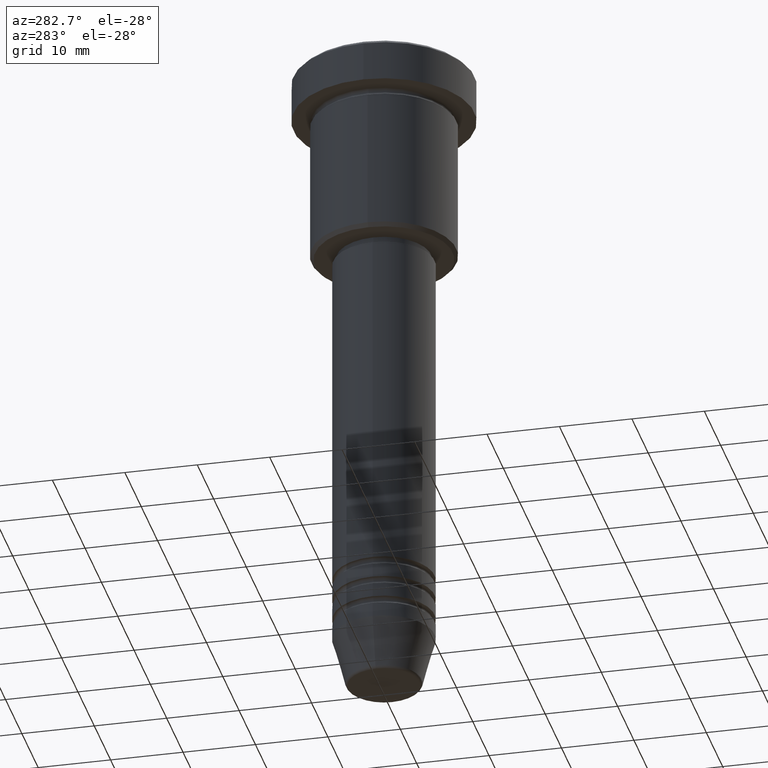
[diagram: clean part render]
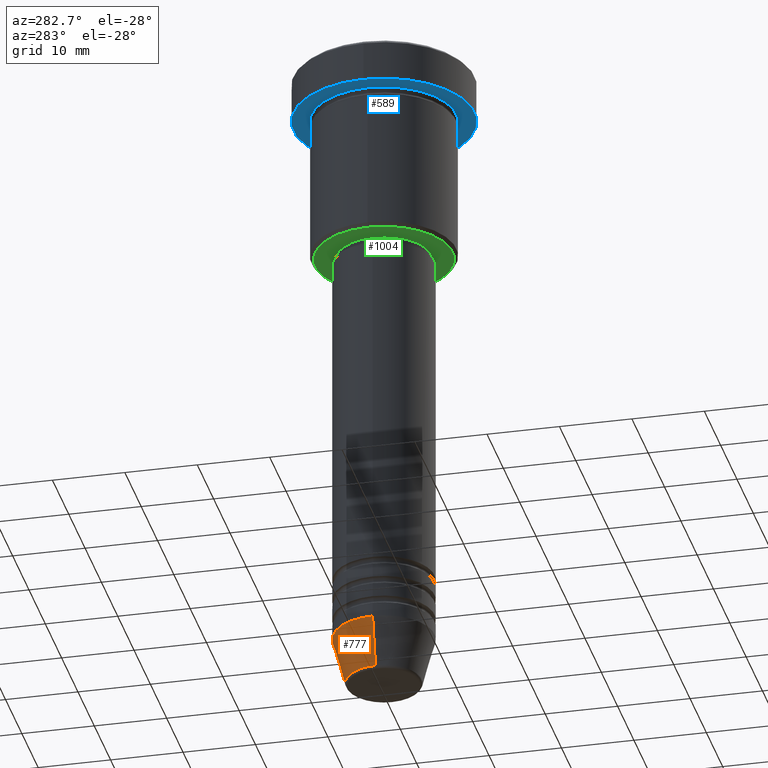
[diagram: same view with three faces highlighted in distinct colors, each labeled with its STEP entity id]
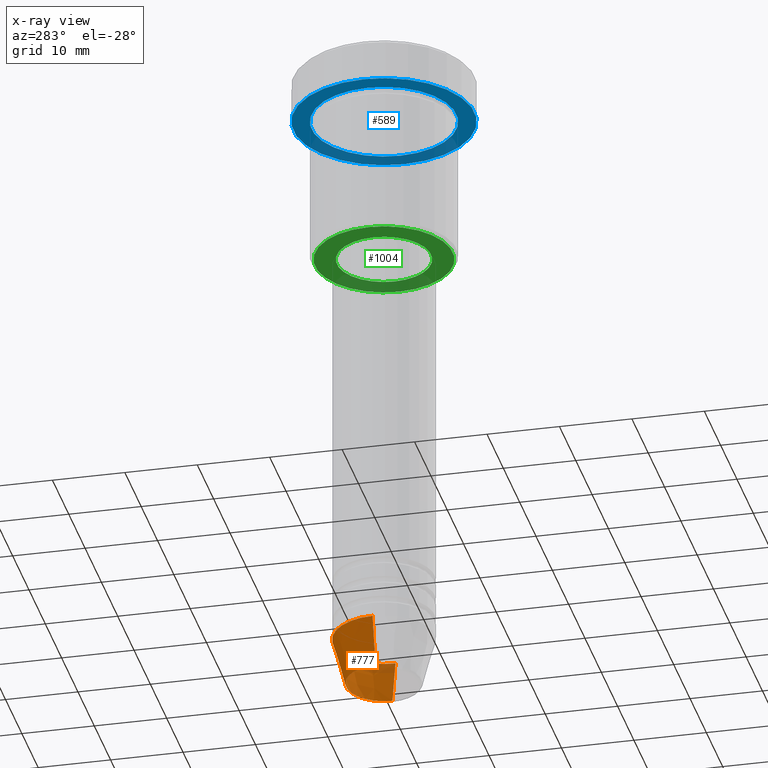
[diagram: x-ray of the same camera — body ghosted, the three highlighted faces saturated]
A machine part, auxiliary view with three faces highlighted in distinct colors.
The next image is the same camera in x-ray (body ghosted, the three faces saturated) — at least one of them is partly hidden behind the body in this view.
Their STEP definitions:

[orange] entity #777 — the highlighted conical surface has half-angle 15 deg.
#71 = CIRCLE ( 'NONE', #227, 5.223655072137187716 ) ;
#72 = VERTEX_POINT ( 'NONE', #1129 ) ;
#108 = EDGE_LOOP ( 'NONE', ( #890, #466, #371, #969 ) ) ;
#146 = DIRECTION ( 'NONE',  ( 0.2588190451025214056, 0.000000000000000000, 0.9659258262890680902 ) ) ;
#177 = EDGE_CURVE ( 'NONE', #952, #72, #809, .T. ) ;
#227 = AXIS2_PLACEMENT_3D ( 'NONE', #1058, #973, #420 ) ;
#228 = CARTESIAN_POINT ( 'NONE',  ( -5.223655072137187716, 7.484830028987059188E-16, -91.62940952255125637 ) ) ;
#237 = VERTEX_POINT ( 'NONE', #977 ) ;
#313 = CARTESIAN_POINT ( 'NONE',  ( 0.000000000000000000, 0.000000000000000000, -84.99999999999998579 ) ) ;
#342 = LINE ( 'NONE', #1136, #500 ) ;
#346 = EDGE_CURVE ( 'NONE', #72, #237, #654, .T. ) ;
#371 = ORIENTED_EDGE ( 'NONE', *, *, #346, .F. ) ;
#392 = DIRECTION ( 'NONE',  ( 1.000000000000000000, 0.000000000000000000, 0.000000000000000000 ) ) ;
#420 = DIRECTION ( 'NONE',  ( 1.000000000000000000, 0.000000000000000000, 0.000000000000000000 ) ) ;
#422 = AXIS2_PLACEMENT_3D ( 'NONE', #313, #590, #392 ) ;
#433 = EDGE_CURVE ( 'NONE', #952, #780, #71, .T. ) ;
#466 = ORIENTED_EDGE ( 'NONE', *, *, #1076, .T. ) ;
#500 = VECTOR ( 'NONE', #781, 1000.000000000000000 ) ;
#514 = VECTOR ( 'NONE', #146, 1000.000000000000000 ) ;
#543 = DIRECTION ( 'NONE',  ( 1.000000000000000000, 0.000000000000000000, 0.000000000000000000 ) ) ;
#556 = AXIS2_PLACEMENT_3D ( 'NONE', #733, #925, #543 ) ;
#582 = FACE_OUTER_BOUND ( 'NONE', #108, .T. ) ;
#590 = DIRECTION ( 'NONE',  ( -0.000000000000000000, -0.000000000000000000, 1.000000000000000000 ) ) ;
#654 = CIRCLE ( 'NONE', #556, 7.000000000000000000 ) ;
#733 = CARTESIAN_POINT ( 'NONE',  ( 0.000000000000000000, 0.000000000000000000, -84.99999999999998579 ) ) ;
#777 = ADVANCED_FACE ( 'NONE', ( #582 ), #940, .T. ) ;
#780 = VERTEX_POINT ( 'NONE', #228 ) ;
#781 = DIRECTION ( 'NONE',  ( -0.2588190451025214056, 3.169619151431772953E-17, 0.9659258262890680902 ) ) ;
#809 = LINE ( 'NONE', #1074, #514 ) ;
#890 = ORIENTED_EDGE ( 'NONE', *, *, #433, .T. ) ;
#925 = DIRECTION ( 'NONE',  ( -0.000000000000000000, -0.000000000000000000, 1.000000000000000000 ) ) ;
#940 = CONICAL_SURFACE ( 'NONE', #422, 7.000000000000000000, 0.2617993877991501295 ) ;
#952 = VERTEX_POINT ( 'NONE', #1018 ) ;
#969 = ORIENTED_EDGE ( 'NONE', *, *, #177, .F. ) ;
#973 = DIRECTION ( 'NONE',  ( -0.000000000000000000, -0.000000000000000000, 1.000000000000000000 ) ) ;
#977 = CARTESIAN_POINT ( 'NONE',  ( -7.000000000000000000, 8.572527594031473190E-16, -84.99999999999998579 ) ) ;
#1018 = CARTESIAN_POINT ( 'NONE',  ( 5.223655072137187716, 0.000000000000000000, -91.62940952255125637 ) ) ;
#1058 = CARTESIAN_POINT ( 'NONE',  ( 0.000000000000000000, 0.000000000000000000, -91.62940952255125637 ) ) ;
#1074 = CARTESIAN_POINT ( 'NONE',  ( 7.000000000000000000, 0.000000000000000000, -84.99999999999998579 ) ) ;
#1076 = EDGE_CURVE ( 'NONE', #780, #237, #342, .T. ) ;
#1129 = CARTESIAN_POINT ( 'NONE',  ( 7.000000000000000000, 0.000000000000000000, -84.99999999999998579 ) ) ;
#1136 = CARTESIAN_POINT ( 'NONE',  ( -7.000000000000000000, 8.572527594031473190E-16, -84.99999999999998579 ) ) ;

[blue] entity #589 — the highlighted planar face has unit normal (0, 0, -1).
#4 = EDGE_LOOP ( 'NONE', ( #122, #49 ) ) ;
#38 = CARTESIAN_POINT ( 'NONE',  ( 10.00000000000000000, 1.224646799147353256E-15, -5.999999999999996447 ) ) ;
#41 = VERTEX_POINT ( 'NONE', #499 ) ;
#49 = ORIENTED_EDGE ( 'NONE', *, *, #888, .F. ) ;
#61 = EDGE_CURVE ( 'NONE', #800, #41, #1065, .T. ) ;
#116 = CARTESIAN_POINT ( 'NONE',  ( 0.000000000000000000, 0.000000000000000000, -5.999999999999996447 ) ) ;
#122 = ORIENTED_EDGE ( 'NONE', *, *, #970, .F. ) ;
#216 = CARTESIAN_POINT ( 'NONE',  ( 0.000000000000000000, 0.000000000000000000, -5.999999999999996447 ) ) ;
#358 = CARTESIAN_POINT ( 'NONE',  ( 0.000000000000000000, 12.50000000000000000, -5.999999999999996447 ) ) ;
#389 = VERTEX_POINT ( 'NONE', #1079 ) ;
#390 = DIRECTION ( 'NONE',  ( 1.000000000000000000, 0.000000000000000000, 0.000000000000000000 ) ) ;
#430 = ORIENTED_EDGE ( 'NONE', *, *, #61, .T. ) ;
#449 = FACE_OUTER_BOUND ( 'NONE', #4, .T. ) ;
#460 = FACE_BOUND ( 'NONE', #1022, .T. ) ;
#477 = CIRCLE ( 'NONE', #975, 10.00000000000000000 ) ;
#499 = CARTESIAN_POINT ( 'NONE',  ( -10.00000000000000000, 0.000000000000000000, -5.999999999999996447 ) ) ;
#550 = DIRECTION ( 'NONE',  ( -0.000000000000000000, -0.000000000000000000, 1.000000000000000000 ) ) ;
#566 = CARTESIAN_POINT ( 'NONE',  ( 12.50000000000000000, 0.000000000000000000, -5.999999999999996447 ) ) ;
#589 = ADVANCED_FACE ( 'NONE', ( #460, #449 ), #820, .T. ) ;
#604 = EDGE_CURVE ( 'NONE', #41, #800, #477, .T. ) ;
#606 = DIRECTION ( 'NONE',  ( -0.000000000000000000, -0.000000000000000000, 1.000000000000000000 ) ) ;
#617 = CIRCLE ( 'NONE', #706, 12.50000000000000000 ) ;
#667 = DIRECTION ( 'NONE',  ( -0.000000000000000000, -0.000000000000000000, 1.000000000000000000 ) ) ;
#674 = AXIS2_PLACEMENT_3D ( 'NONE', #358, #734, #1011 ) ;
#685 = DIRECTION ( 'NONE',  ( 1.000000000000000000, 0.000000000000000000, 0.000000000000000000 ) ) ;
#706 = AXIS2_PLACEMENT_3D ( 'NONE', #116, #667, #390 ) ;
#714 = CIRCLE ( 'NONE', #920, 12.50000000000000000 ) ;
#734 = DIRECTION ( 'NONE',  ( 0.000000000000000000, 0.000000000000000000, -1.000000000000000000 ) ) ;
#800 = VERTEX_POINT ( 'NONE', #38 ) ;
#814 = DIRECTION ( 'NONE',  ( -1.000000000000000000, 0.000000000000000000, 0.000000000000000000 ) ) ;
#820 = PLANE ( 'NONE',  #674 ) ;
#888 = EDGE_CURVE ( 'NONE', #389, #995, #714, .T. ) ;
#920 = AXIS2_PLACEMENT_3D ( 'NONE', #216, #1123, #685 ) ;
#938 = AXIS2_PLACEMENT_3D ( 'NONE', #1038, #606, #1048 ) ;
#970 = EDGE_CURVE ( 'NONE', #995, #389, #617, .T. ) ;
#975 = AXIS2_PLACEMENT_3D ( 'NONE', #1096, #550, #814 ) ;
#979 = ORIENTED_EDGE ( 'NONE', *, *, #604, .T. ) ;
#995 = VERTEX_POINT ( 'NONE', #566 ) ;
#1011 = DIRECTION ( 'NONE',  ( -1.000000000000000000, 0.000000000000000000, -0.000000000000000000 ) ) ;
#1022 = EDGE_LOOP ( 'NONE', ( #979, #430 ) ) ;
#1038 = CARTESIAN_POINT ( 'NONE',  ( 0.000000000000000000, 0.000000000000000000, -5.999999999999996447 ) ) ;
#1048 = DIRECTION ( 'NONE',  ( -1.000000000000000000, 0.000000000000000000, 0.000000000000000000 ) ) ;
#1065 = CIRCLE ( 'NONE', #938, 10.00000000000000000 ) ;
#1079 = CARTESIAN_POINT ( 'NONE',  ( -12.50000000000000000, 1.530808498934191521E-15, -5.999999999999996447 ) ) ;
#1096 = CARTESIAN_POINT ( 'NONE',  ( 0.000000000000000000, 0.000000000000000000, -5.999999999999996447 ) ) ;
#1123 = DIRECTION ( 'NONE',  ( -0.000000000000000000, -0.000000000000000000, 1.000000000000000000 ) ) ;

[green] entity #1004 — the highlighted planar face has unit normal (0, 0, -1).
#1 = CARTESIAN_POINT ( 'NONE',  ( 0.000000000000000000, 0.000000000000000000, -27.00000000000000000 ) ) ;
#22 = FACE_OUTER_BOUND ( 'NONE', #882, .T. ) ;
#80 = EDGE_CURVE ( 'NONE', #578, #585, #201, .T. ) ;
#104 = FACE_BOUND ( 'NONE', #607, .T. ) ;
#155 = ORIENTED_EDGE ( 'NONE', *, *, #80, .T. ) ;
#188 = CARTESIAN_POINT ( 'NONE',  ( 0.000000000000000000, 0.000000000000000000, -26.99999999999999645 ) ) ;
#201 = CIRCLE ( 'NONE', #1010, 6.500000000000000000 ) ;
#220 = CARTESIAN_POINT ( 'NONE',  ( 9.499999999999966249, 0.000000000000000000, -26.99999999999999645 ) ) ;
#244 = AXIS2_PLACEMENT_3D ( 'NONE', #188, #1091, #643 ) ;
#293 = DIRECTION ( 'NONE',  ( 1.000000000000000000, 0.000000000000000000, 0.000000000000000000 ) ) ;
#298 = DIRECTION ( 'NONE',  ( 0.000000000000000000, 0.000000000000000000, -1.000000000000000000 ) ) ;
#308 = CARTESIAN_POINT ( 'NONE',  ( 0.000000000000000000, 0.000000000000000000, -27.00000000000000000 ) ) ;
#343 = ORIENTED_EDGE ( 'NONE', *, *, #442, .T. ) ;
#377 = AXIS2_PLACEMENT_3D ( 'NONE', #531, #892, #806 ) ;
#402 = ORIENTED_EDGE ( 'NONE', *, *, #622, .T. ) ;
#440 = AXIS2_PLACEMENT_3D ( 'NONE', #1, #1118, #293 ) ;
#442 = EDGE_CURVE ( 'NONE', #794, #558, #900, .T. ) ;
#531 = CARTESIAN_POINT ( 'NONE',  ( 0.000000000000000000, 0.000000000000000000, -26.99999999999999645 ) ) ;
#545 = CARTESIAN_POINT ( 'NONE',  ( -6.500000000000000000, 7.960204194457795477E-16, -27.00000000000000000 ) ) ;
#558 = VERTEX_POINT ( 'NONE', #754 ) ;
#578 = VERTEX_POINT ( 'NONE', #1110 ) ;
#585 = VERTEX_POINT ( 'NONE', #545 ) ;
#607 = EDGE_LOOP ( 'NONE', ( #155, #974 ) ) ;
#622 = EDGE_CURVE ( 'NONE', #558, #794, #1014, .T. ) ;
#643 = DIRECTION ( 'NONE',  ( -1.000000000000000000, 0.000000000000000000, 0.000000000000000000 ) ) ;
#688 = DIRECTION ( 'NONE',  ( -0.000000000000000000, -0.000000000000000000, 1.000000000000000000 ) ) ;
#754 = CARTESIAN_POINT ( 'NONE',  ( -9.499999999999966249, 1.194030629168667300E-15, -26.99999999999999645 ) ) ;
#764 = CARTESIAN_POINT ( 'NONE',  ( 0.000000000000000000, 10.00000000000000000, -26.99999999999999645 ) ) ;
#794 = VERTEX_POINT ( 'NONE', #220 ) ;
#806 = DIRECTION ( 'NONE',  ( -1.000000000000000000, 0.000000000000000000, 0.000000000000000000 ) ) ;
#834 = DIRECTION ( 'NONE',  ( -1.000000000000000000, 0.000000000000000000, -0.000000000000000000 ) ) ;
#882 = EDGE_LOOP ( 'NONE', ( #343, #402 ) ) ;
#892 = DIRECTION ( 'NONE',  ( 0.000000000000000000, 0.000000000000000000, -1.000000000000000000 ) ) ;
#900 = CIRCLE ( 'NONE', #377, 9.499999999999966249 ) ;
#951 = EDGE_CURVE ( 'NONE', #585, #578, #1064, .T. ) ;
#963 = DIRECTION ( 'NONE',  ( 1.000000000000000000, 0.000000000000000000, 0.000000000000000000 ) ) ;
#974 = ORIENTED_EDGE ( 'NONE', *, *, #951, .T. ) ;
#1004 = ADVANCED_FACE ( 'NONE', ( #22, #104 ), #1027, .T. ) ;
#1010 = AXIS2_PLACEMENT_3D ( 'NONE', #308, #688, #963 ) ;
#1014 = CIRCLE ( 'NONE', #244, 9.499999999999966249 ) ;
#1015 = AXIS2_PLACEMENT_3D ( 'NONE', #764, #298, #834 ) ;
#1027 = PLANE ( 'NONE',  #1015 ) ;
#1064 = CIRCLE ( 'NONE', #440, 6.500000000000000000 ) ;
#1091 = DIRECTION ( 'NONE',  ( 0.000000000000000000, 0.000000000000000000, -1.000000000000000000 ) ) ;
#1110 = CARTESIAN_POINT ( 'NONE',  ( 6.500000000000000000, 0.000000000000000000, -27.00000000000000000 ) ) ;
#1118 = DIRECTION ( 'NONE',  ( -0.000000000000000000, -0.000000000000000000, 1.000000000000000000 ) ) ;